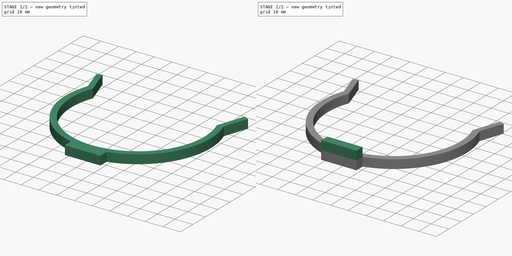
[diagram: build sequence overview — one tinted view per stage of 2, left to right]
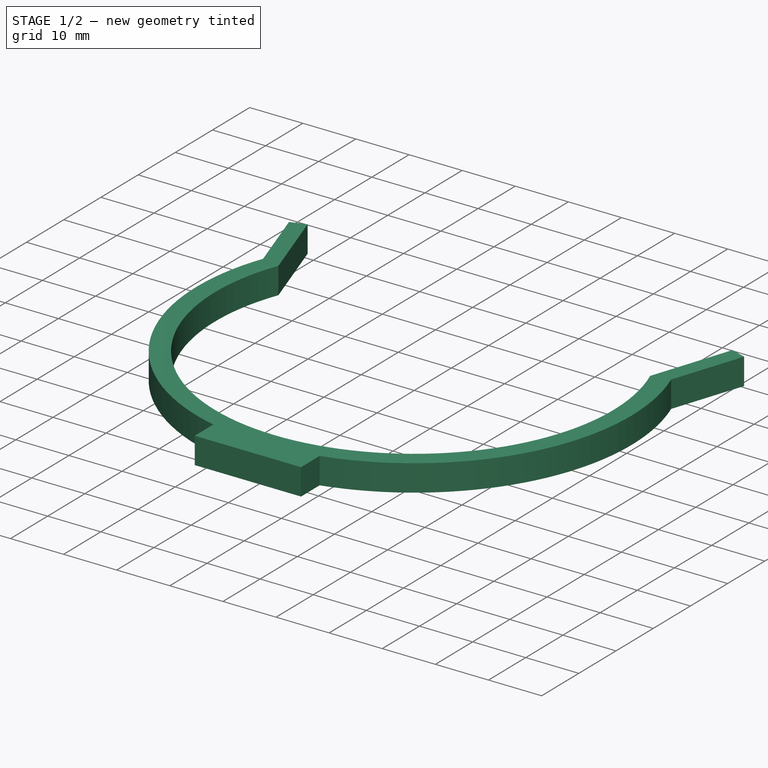
[diagram: stage 1 of 2 — iso view after this stage's code; geometry added in this stage tinted green]
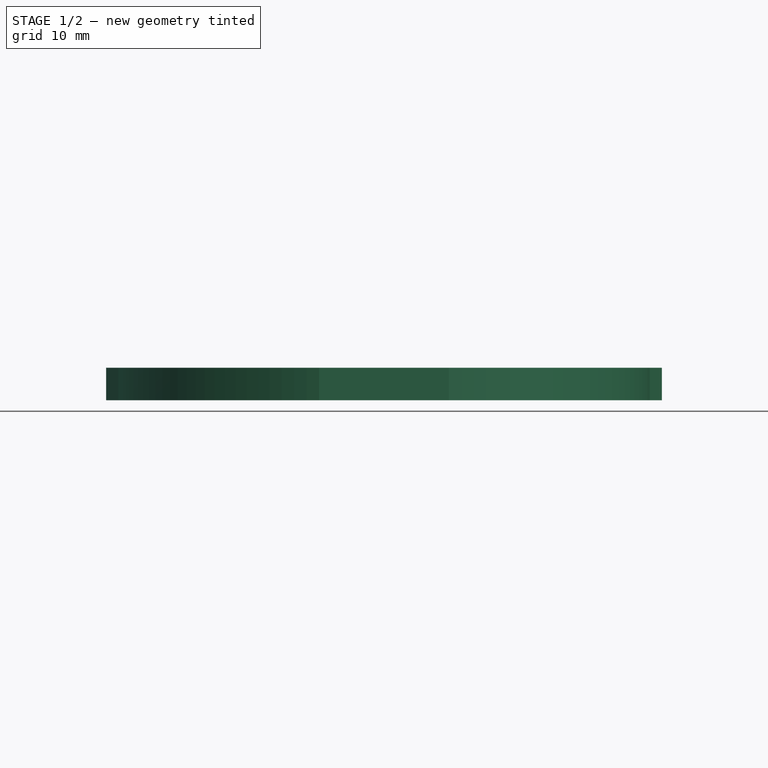
[diagram: stage 1 of 2 — front view after this stage's code; geometry added in this stage tinted green]
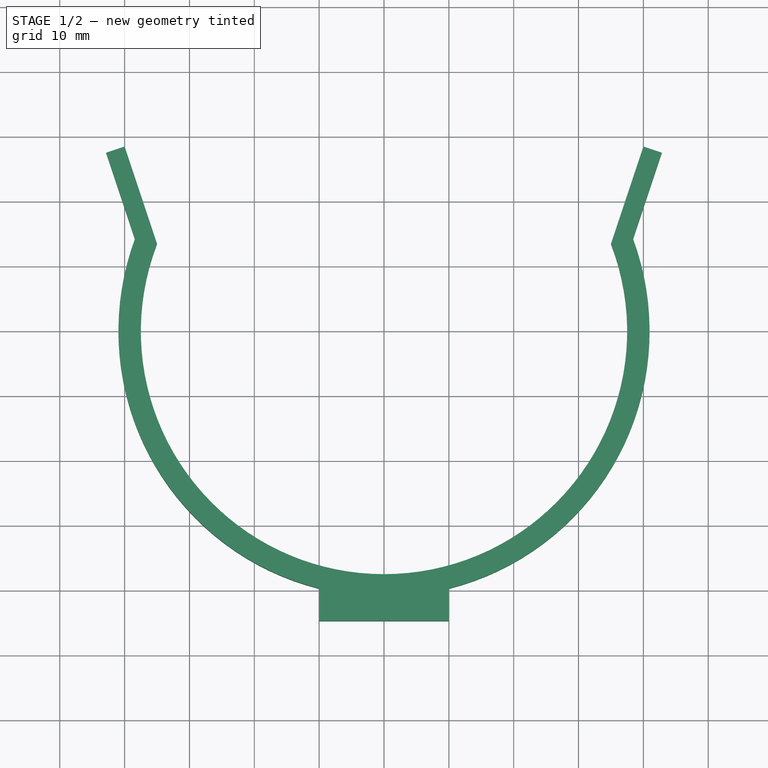
[diagram: stage 1 of 2 — top view after this stage's code; geometry added in this stage tinted green]
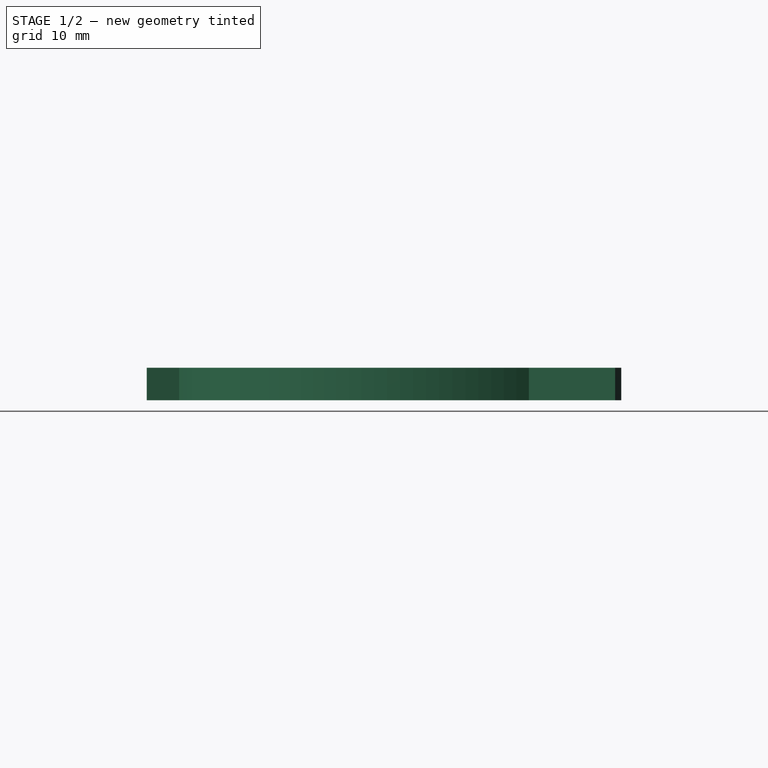
[diagram: stage 1 of 2 — right view after this stage's code; geometry added in this stage tinted green]
FCSTD DOCUMENT  (FreeCAD 0.20R25352 (Git))
Label: bike water cage
License: All rights reserved
LicenseURL: http://en.wikipedia.org/wiki/All_rights_reserved
objects: Sketcher::SketchObject×2, PartDesign::Pad×2, PartDesign::Body×1
note: 7 computed .brp shape members not serialized (recipe doc carries the construction recipe); baked Part::Feature solids carry a one-line shape summary decoded from their .brp

FEATURE [Sketcher::SketchObject] Sketch
  FullyConstrained = false
  MapMode = 5
  Support = -> [XY_Plane]
  sketch-geometry (16):
    g0: ArcOfCircle CenterX=-3e-16 CenterY=0 CenterZ=0 NormalX=0 NormalY=0 NormalZ=1 AngleXU=0 Radius=37.5 StartAngle=2.77438 EndAngle=6.65039
    g1: GeomPoint X=0 Y=-37.5 Z=0
    g2: GeomPoint X=0 Y=-40.5 Z=0
    g3: LineSegment StartX=-35 StartY=13.4629 StartZ=0 EndX=-40 EndY=28.4629 EndZ=0
    g4: LineSegment StartX=-42.846 StartY=27.5142 StartZ=0 EndX=-38.4123 EndY=14.2129 EndZ=0
    g5: LineSegment StartX=0 StartY=-37.5 StartZ=0 EndX=0 EndY=-40.5 EndZ=0
    g6: LineSegment StartX=35 StartY=13.4629 StartZ=0 EndX=40 EndY=28.4629 EndZ=0
    g7: LineSegment StartX=40 StartY=28.4629 StartZ=0 EndX=42.846 EndY=27.5142 EndZ=0
    g8: LineSegment StartX=42.846 StartY=27.5142 StartZ=0 EndX=38.4123 EndY=14.2129 EndZ=0
    g9: LineSegment StartX=-42.846 StartY=27.5142 StartZ=0 EndX=-40 EndY=28.4629 EndZ=0
    g10: LineSegment StartX=-40.5 StartY=0 StartZ=0 EndX=-37.5 EndY=0 EndZ=0
    g11: ArcOfCircle CenterX=-3e-16 CenterY=0 CenterZ=0 NormalX=0 NormalY=0 NormalZ=1 AngleXU=0 Radius=40.9574 StartAngle=2.7872 EndAngle=4.46574
    g12: ArcOfCircle CenterX=-3e-16 CenterY=0 CenterZ=0 NormalX=0 NormalY=0 NormalZ=1 AngleXU=0 Radius=40.9574 StartAngle=4.95904 EndAngle=6.63757
    g13: LineSegment StartX=-10 StartY=-39.7179 StartZ=0 EndX=-10 EndY=-44.7179 EndZ=0
    g14: LineSegment StartX=-10 StartY=-44.7179 StartZ=0 EndX=10 EndY=-44.7179 EndZ=0
    g15: LineSegment StartX=10 StartY=-44.7179 StartZ=0 EndX=10 EndY=-39.7179 EndZ=0
  constraints (42):
    c: PointOnObject(g1,g-2)
    c: PointOnObject(g1,g0)
    c: PointOnObject(g2,g-2)
    c: DistanceY(g2,g1) = 3
    c: Parallel(g3,g4)
    c: Coincident(g5,g1)
    c: Coincident(g5,g2)
    c: Symmetric(g8,g4,g-2)
    c: Coincident(g6,g7)
    c: Coincident(g7,g8)
    c: Symmetric(g3,g6,g-2)
    c: Symmetric(g4,g7,g-2)
    c: Symmetric(g3,g6,g-2)
    c: Coincident(g3,g0)
    c: Coincident(g6,g0)
    c: Diameter(g0) = 75
    c: DistanceX(g3,g6) = 80
    c: DistanceY(g0,g3) = 15
    c: DistanceX(g0,g0) = 70
    c: Coincident(g9,g4)
    c: Coincident(g9,g3)
    c: Equal(g5,g9)
    c: Perpendicular(g9,g3)
    c: PointOnObject(g10,g-1)
    c: PointOnObject(g10,g-1)
    c: PointOnObject(g10,g0)
    c: Equal(g5,g10)
    c: Coincident(g11,g0)
    c: Coincident(g12,g0)
    c: Coincident(g11,g4)
    c: Coincident(g8,g12)
    c: Coincident(g11,g13)
    c: Coincident(g13,g14)
    c: Coincident(g14,g15)
    c: Coincident(g15,g12)
    c: Vertical(g13)
    c: Vertical(g15)
    c: Horizontal(g14)
    c: Symmetric(g11,g12,g-2)
    c: DistanceY(g15,g15) = 5
    c: DistanceX(g14,g14) = 20
    c: Coincident(g0,g-1)
FEATURE [PartDesign::Pad] Pad
  Direction = (0,0,1)
  Length = 5
  Length2 = 100
  Profile = -> Sketch
  Type = 0
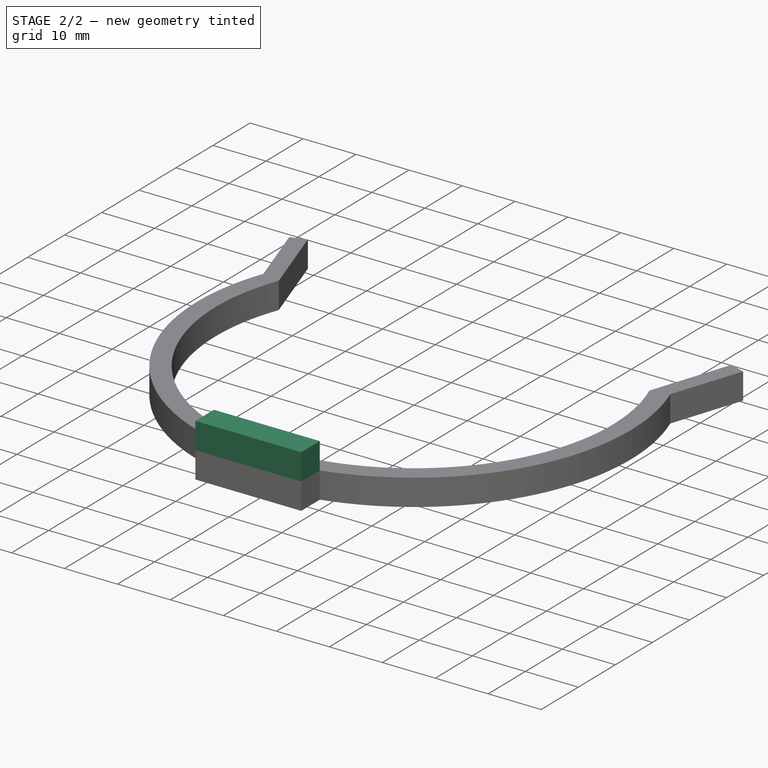
[diagram: stage 2 of 2 — iso view after this stage's code; geometry added in this stage tinted green]
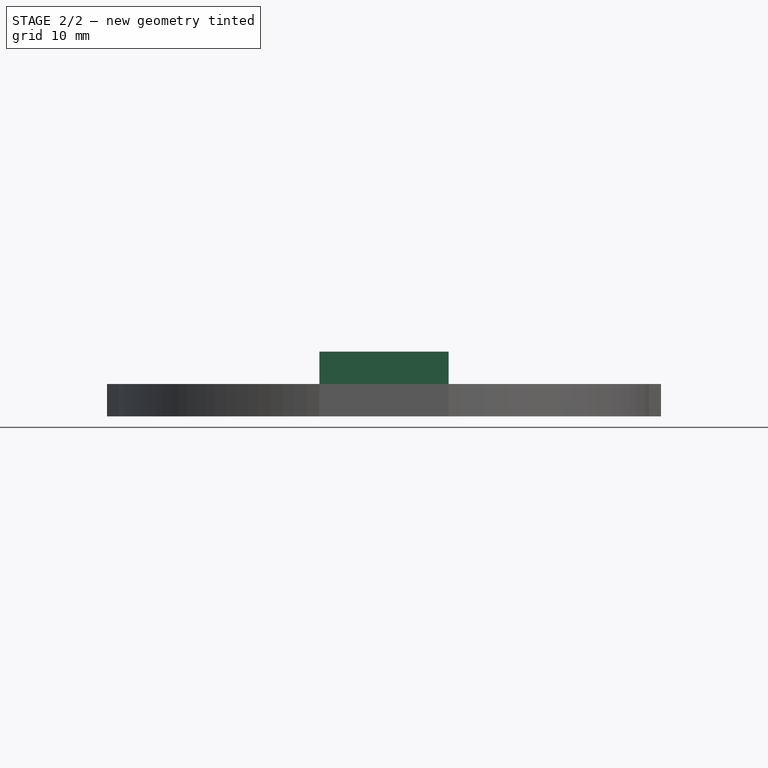
[diagram: stage 2 of 2 — front view after this stage's code; geometry added in this stage tinted green]
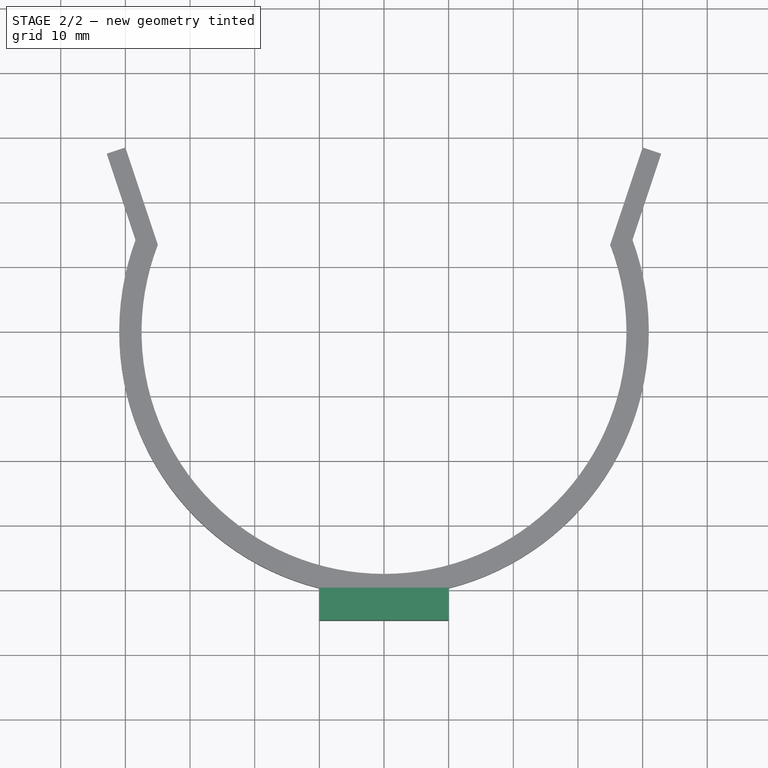
[diagram: stage 2 of 2 — top view after this stage's code; geometry added in this stage tinted green]
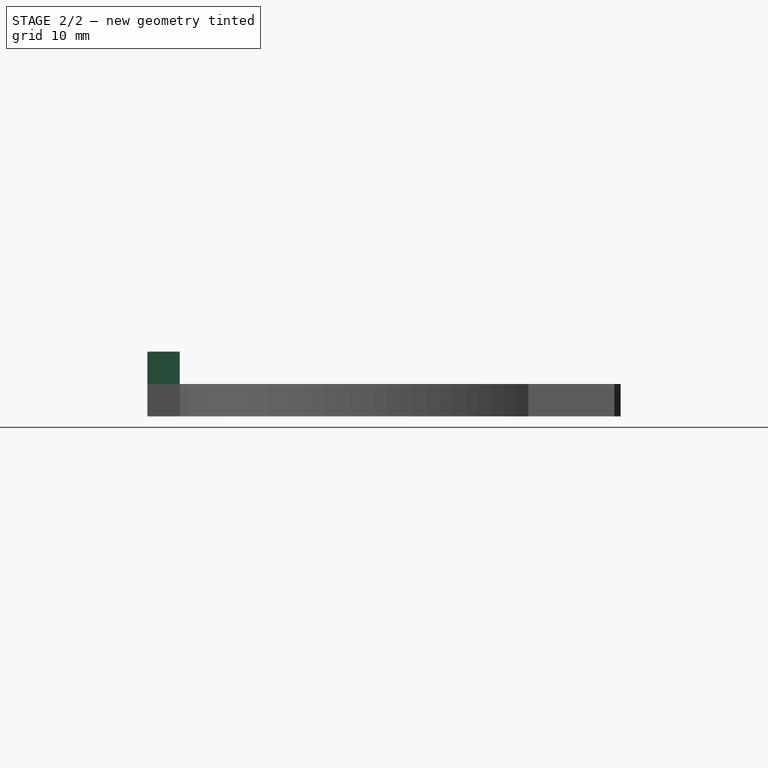
[diagram: stage 2 of 2 — right view after this stage's code; geometry added in this stage tinted green]
FEATURE [Sketcher::SketchObject] Sketch001
  ExternalGeometry = -> [Pad]
  FullyConstrained = true
  MapMode = 5
  Placement = pos=(0,0,5) rot=(0,0,1;0rad)
  Support = -> [Pad]
  sketch-geometry (4):
    g0: LineSegment StartX=-10 StartY=-39.7179 StartZ=0 EndX=10 EndY=-39.7179 EndZ=0
    g1: LineSegment StartX=10 StartY=-39.7179 StartZ=0 EndX=10 EndY=-44.7179 EndZ=0
    g2: LineSegment StartX=10 StartY=-44.7179 StartZ=0 EndX=-10 EndY=-44.7179 EndZ=0
    g3: LineSegment StartX=-10 StartY=-44.7179 StartZ=0 EndX=-10 EndY=-39.7179 EndZ=0
  constraints (10):
    c: Coincident(g0,g1)
    c: Coincident(g1,g2)
    c: Coincident(g2,g3)
    c: Coincident(g3,g0)
    c: Horizontal(g0)
    c: Horizontal(g2)
    c: Vertical(g1)
    c: Vertical(g3)
    c: Coincident(g0,g-4)
    c: Coincident(g1,g-6)
FEATURE [PartDesign::Pad] Pad001
  BaseFeature = -> Pad
  Direction = (0,0,1)
  Length = 5
  Length2 = 100
  Profile = -> Sketch001
  Type = 0
FEATURE [PartDesign::Body] Body
  Group = -> [Sketch,Pad,Sketch001,Pad001]
  Origin = -> Origin
  Tip = -> Pad001
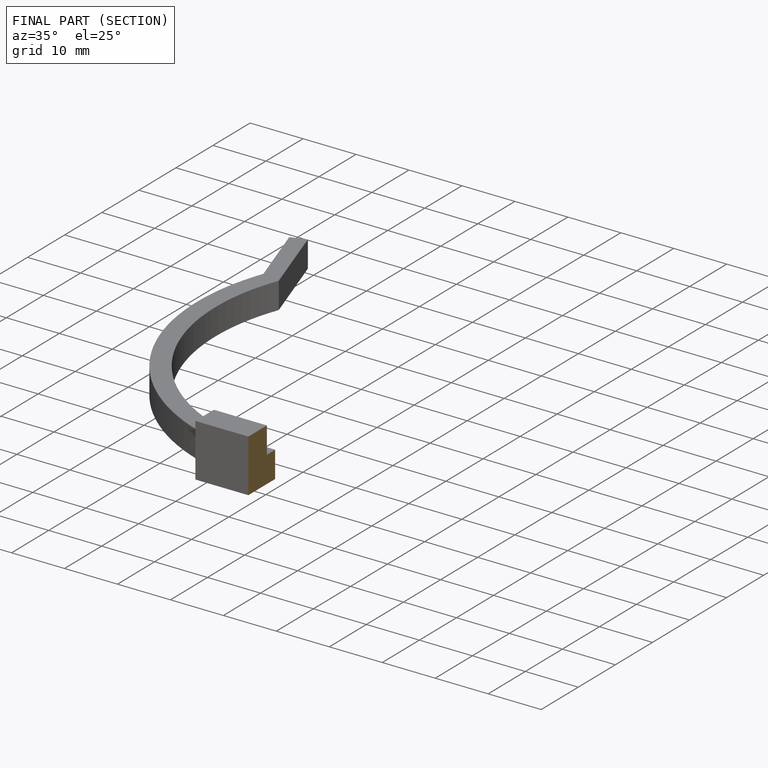
[diagram: finished part — half-section view (interior)]
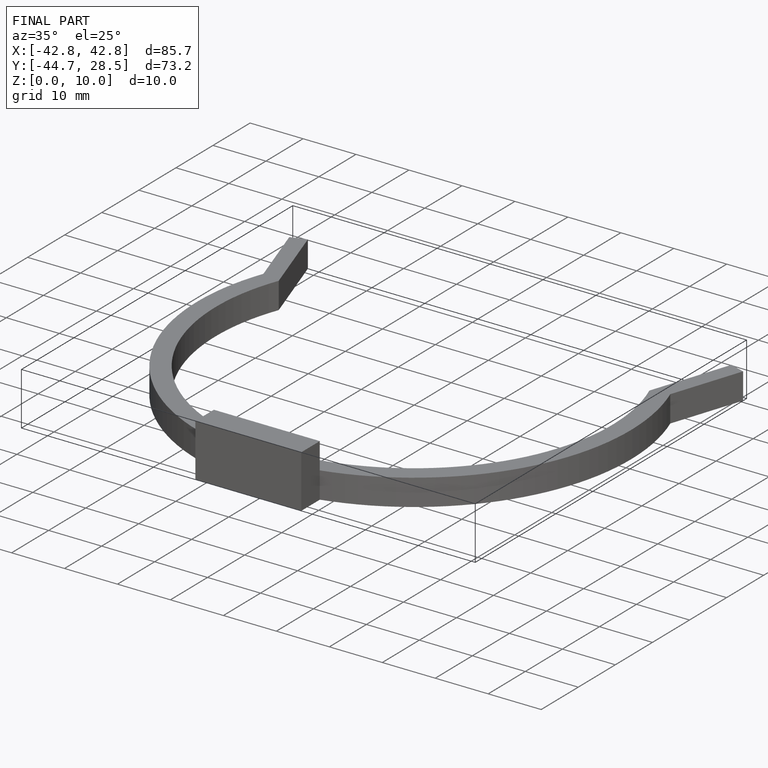
[diagram: finished part — iso view with bounding-box wireframe]
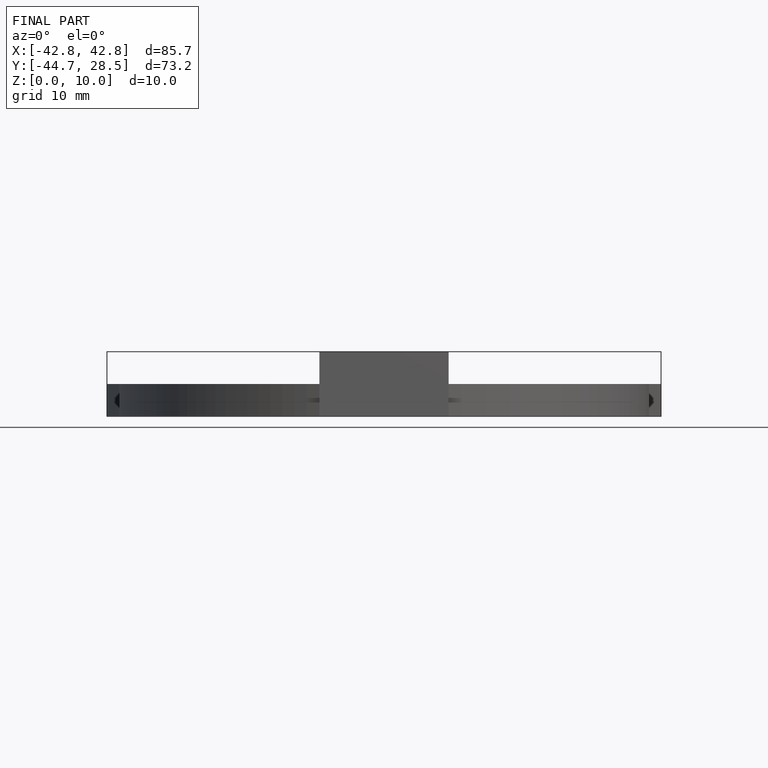
[diagram: finished part — front view with bounding-box wireframe]
